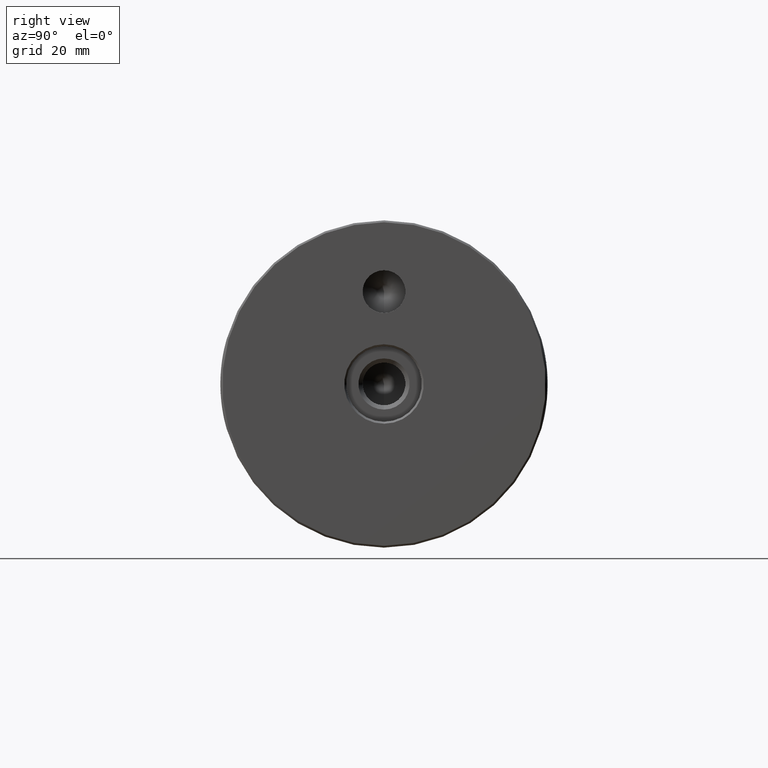
[diagram: clean part render]
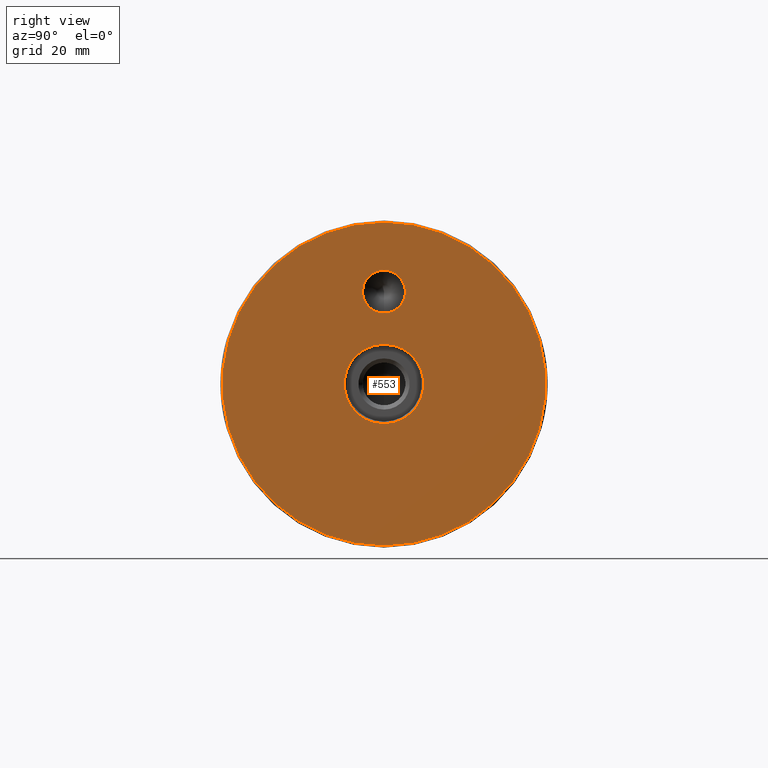
[diagram: same view with one face highlighted and labeled with its STEP entity id]
A machine part, right view. The second image highlights one B-rep face of the part: STEP entity #553.
In plain terms, the highlighted planar face has unit normal (1, 0, -0).
Its self-contained STEP definition (entity closure, byte-faithful):
#3 = DIRECTION ( 'NONE',  ( 1.000000000000000000, -0.0000000000000000000, -0.0000000000000000000 ) ) ;
#26 = VERTEX_POINT ( 'NONE', #429 ) ;
#52 = VERTEX_POINT ( 'NONE', #236 ) ;
#91 = AXIS2_PLACEMENT_3D ( 'NONE', #436, #3, #743 ) ;
#101 = CIRCLE ( 'NONE', #438, 5.100000000000013900 ) ;
#162 = DIRECTION ( 'NONE',  ( -0.0000000000000000000, 0.0000000000000000000, -1.000000000000000000 ) ) ;
#228 = DIRECTION ( 'NONE',  ( 1.000000000000000000, -0.0000000000000000000, -0.0000000000000000000 ) ) ;
#236 = CARTESIAN_POINT ( 'NONE',  ( 0.0000000000000000000, 0.0000000000000000000, -38.55000000000000400 ) ) ;
#253 = EDGE_CURVE ( 'NONE', #26, #26, #488, .T. ) ;
#267 = EDGE_LOOP ( 'NONE', ( #944 ) ) ;
#279 = EDGE_CURVE ( 'NONE', #52, #52, #634, .T. ) ;
#296 = CARTESIAN_POINT ( 'NONE',  ( 0.0000000000000000000, 0.0000000000000000000, 0.0000000000000000000 ) ) ;
#373 = EDGE_CURVE ( 'NONE', #537, #537, #101, .T. ) ;
#379 = AXIS2_PLACEMENT_3D ( 'NONE', #648, #919, #162 ) ;
#381 = CARTESIAN_POINT ( 'NONE',  ( -1.224606353822375500E-016, 0.0000000000000000000, 22.00000000000000000 ) ) ;
#429 = CARTESIAN_POINT ( 'NONE',  ( -2.168404344971008900E-016, 0.0000000000000000000, -9.477350269189619400 ) ) ;
#431 = PLANE ( 'NONE',  #379 ) ;
#436 = CARTESIAN_POINT ( 'NONE',  ( -2.168404344971008900E-016, 0.0000000000000000000, 0.0000000000000000000 ) ) ;
#438 = AXIS2_PLACEMENT_3D ( 'NONE', #381, #684, #779 ) ;
#488 = CIRCLE ( 'NONE', #91, 9.477350269189619400 ) ;
#537 = VERTEX_POINT ( 'NONE', #715 ) ;
#553 = ADVANCED_FACE ( 'NONE', ( #825, #807, #740 ), #431, .T. ) ;
#634 = CIRCLE ( 'NONE', #993, 38.55000000000000400 ) ;
#648 = CARTESIAN_POINT ( 'NONE',  ( 0.0000000000000000000, 0.0000000000000000000, 0.0000000000000000000 ) ) ;
#684 = DIRECTION ( 'NONE',  ( 1.000000000000000000, -0.0000000000000000000, -0.0000000000000000000 ) ) ;
#715 = CARTESIAN_POINT ( 'NONE',  ( -1.224606353822375500E-016, 0.0000000000000000000, 16.89999999999998400 ) ) ;
#740 = FACE_OUTER_BOUND ( 'NONE', #843, .T. ) ;
#743 = DIRECTION ( 'NONE',  ( 0.0000000000000000000, 0.0000000000000000000, -1.000000000000000000 ) ) ;
#745 = ORIENTED_EDGE ( 'NONE', *, *, #279, .T. ) ;
#779 = DIRECTION ( 'NONE',  ( 0.0000000000000000000, 0.0000000000000000000, -1.000000000000000000 ) ) ;
#807 = FACE_BOUND ( 'NONE', #267, .T. ) ;
#825 = FACE_BOUND ( 'NONE', #971, .T. ) ;
#835 = DIRECTION ( 'NONE',  ( 0.0000000000000000000, 0.0000000000000000000, -1.000000000000000000 ) ) ;
#843 = EDGE_LOOP ( 'NONE', ( #745 ) ) ;
#918 = ORIENTED_EDGE ( 'NONE', *, *, #373, .F. ) ;
#919 = DIRECTION ( 'NONE',  ( 1.000000000000000000, 0.0000000000000000000, -0.0000000000000000000 ) ) ;
#944 = ORIENTED_EDGE ( 'NONE', *, *, #253, .F. ) ;
#971 = EDGE_LOOP ( 'NONE', ( #918 ) ) ;
#993 = AXIS2_PLACEMENT_3D ( 'NONE', #296, #228, #835 ) ;